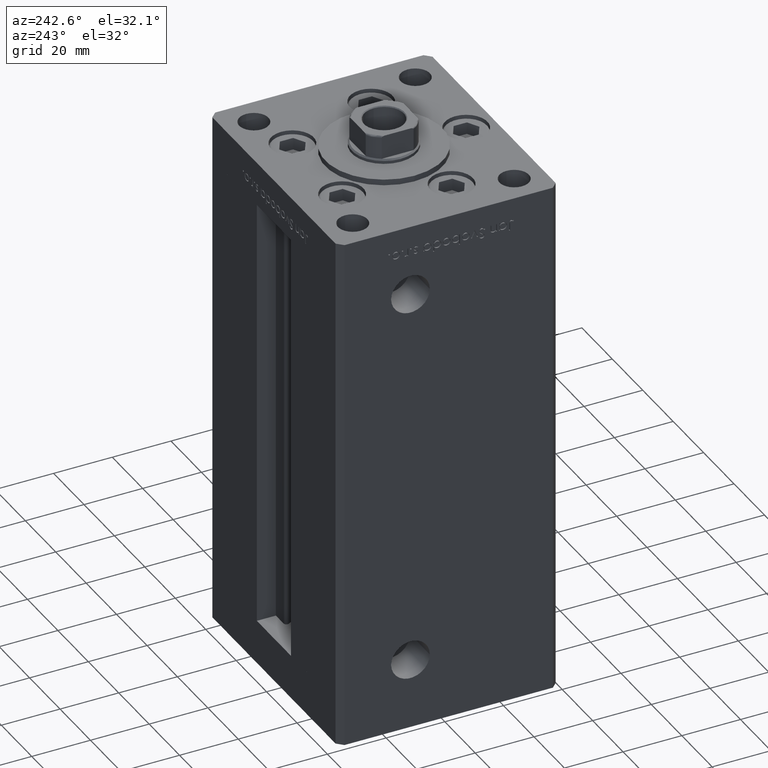
[diagram: clean part render]
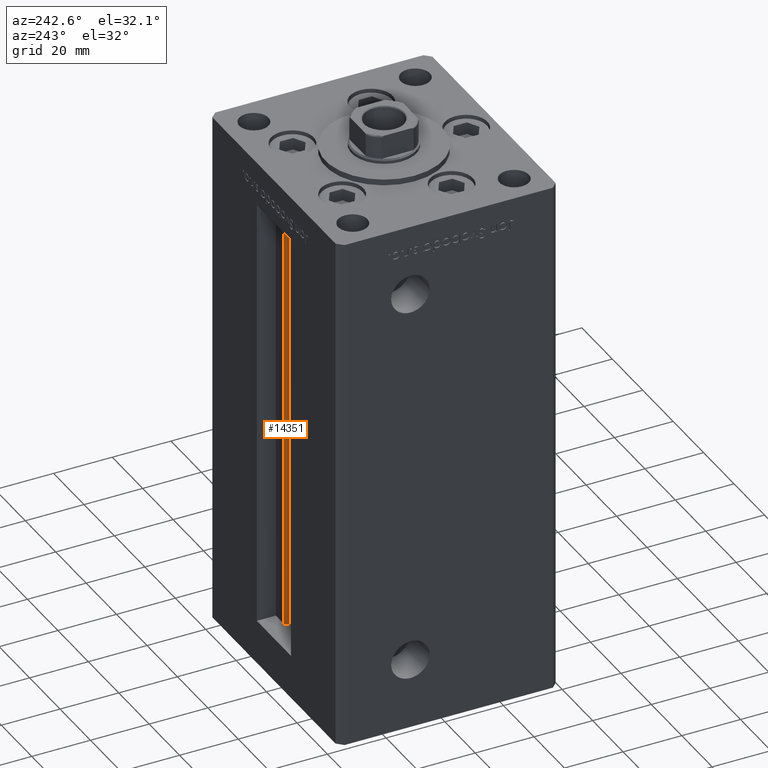
[diagram: same view with one face highlighted and labeled with its STEP entity id]
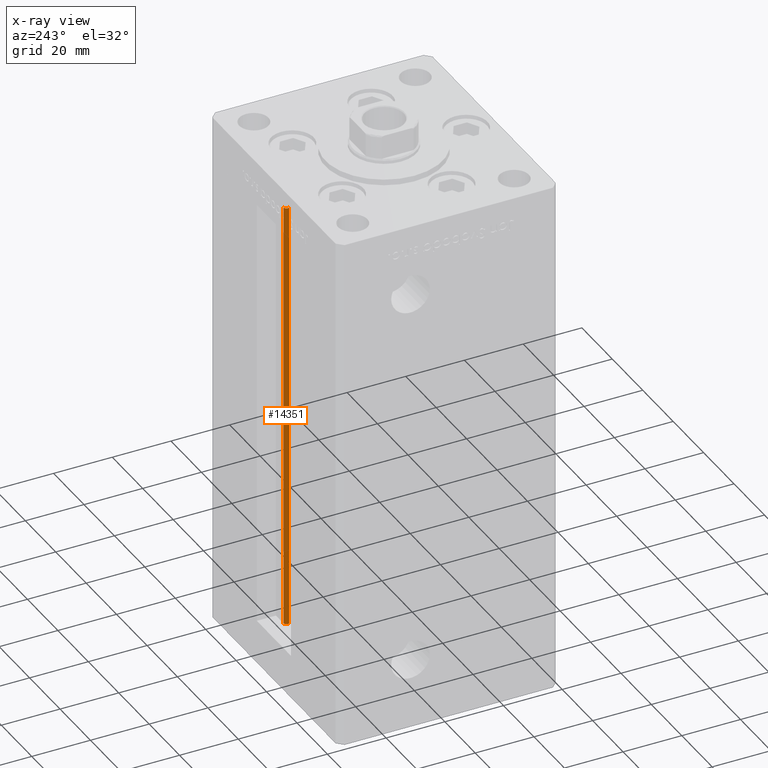
[diagram: x-ray of the same camera — body ghosted, the highlighted face saturated]
A machine part, auxiliary view. The second image highlights one B-rep face of the part: STEP entity #14351.
The next image is the same camera in x-ray: the body ghosted, the highlighted face saturated — about 0% of this face is hidden behind the body in this view.
In plain terms, the highlighted cylindrical surface (edge-blend (fillet) strip) has radius 0.9333 mm, axis along (0, 0, 1).
Its self-contained STEP definition (entity closure, byte-faithful):
#3630 = ORIENTED_EDGE ( 'NONE', *, *, #48889, .F. ) ;
#6138 = CARTESIAN_POINT ( 'NONE',  ( 6.183333333333999704, 30.06666666666599141, 0.000000000000000000 ) ) ;
#7049 = CARTESIAN_POINT ( 'NONE',  ( 5.375042956467943611, 29.59999999999899245, 0.000000000000000000 ) ) ;
#8304 = DIRECTION ( 'NONE',  ( -0.000000000000000000, -0.000000000000000000, 1.000000000000000000 ) ) ;
#8683 = CARTESIAN_POINT ( 'NONE',  ( 5.375042956467944499, 29.59999999999899245, 148.5000000000000000 ) ) ;
#8895 = VERTEX_POINT ( 'NONE', #42871 ) ;
#9565 = CARTESIAN_POINT ( 'NONE',  ( 6.183333333333999704, 30.99999999999999289, 0.000000000000000000 ) ) ;
#9574 = DIRECTION ( 'NONE',  ( 1.000000000000000000, 0.000000000000000000, 0.000000000000000000 ) ) ;
#9843 = DIRECTION ( 'NONE',  ( -0.000000000000000000, -0.000000000000000000, -1.000000000000000000 ) ) ;
#10289 = AXIS2_PLACEMENT_3D ( 'NONE', #22211, #9843, #46234 ) ;
#10356 = EDGE_CURVE ( 'NONE', #33915, #17815, #31314, .T. ) ;
#10929 = CARTESIAN_POINT ( 'NONE',  ( 6.183333333333999704, 30.99999999999999289, 148.5000000000000000 ) ) ;
#14351 = ADVANCED_FACE ( 'NONE', ( #45707 ), #22205, .T. ) ;
#16210 = LINE ( 'NONE', #37032, #49072 ) ;
#17815 = VERTEX_POINT ( 'NONE', #10929 ) ;
#18018 = EDGE_CURVE ( 'NONE', #8895, #17815, #20888, .T. ) ;
#18382 = ORIENTED_EDGE ( 'NONE', *, *, #49936, .T. ) ;
#19638 = AXIS2_PLACEMENT_3D ( 'NONE', #6138, #46761, #9574 ) ;
#20888 = LINE ( 'NONE', #9565, #40708 ) ;
#22205 = CYLINDRICAL_SURFACE ( 'NONE', #19638, 0.9333333333340015914 ) ;
#22211 = CARTESIAN_POINT ( 'NONE',  ( 6.183333333333999704, 30.06666666666599141, 0.000000000000000000 ) ) ;
#23731 = AXIS2_PLACEMENT_3D ( 'NONE', #41590, #37626, #38418 ) ;
#24436 = ORIENTED_EDGE ( 'NONE', *, *, #10356, .T. ) ;
#31314 = CIRCLE ( 'NONE', #23731, 0.9333333333340015914 ) ;
#33915 = VERTEX_POINT ( 'NONE', #8683 ) ;
#34095 = DIRECTION ( 'NONE',  ( -0.000000000000000000, -0.000000000000000000, 1.000000000000000000 ) ) ;
#37032 = CARTESIAN_POINT ( 'NONE',  ( 5.375042956467943611, 29.59999999999899245, 0.000000000000000000 ) ) ;
#37502 = EDGE_LOOP ( 'NONE', ( #39746, #3630, #18382, #24436 ) ) ;
#37626 = DIRECTION ( 'NONE',  ( 0.000000000000000000, 0.000000000000000000, -1.000000000000000000 ) ) ;
#38104 = VERTEX_POINT ( 'NONE', #7049 ) ;
#38418 = DIRECTION ( 'NONE',  ( 1.000000000000000000, 0.000000000000000000, 0.000000000000000000 ) ) ;
#39746 = ORIENTED_EDGE ( 'NONE', *, *, #18018, .F. ) ;
#40708 = VECTOR ( 'NONE', #34095, 1000.000000000000000 ) ;
#41590 = CARTESIAN_POINT ( 'NONE',  ( 6.183333333333999704, 30.06666666666599141, 148.5000000000000000 ) ) ;
#42871 = CARTESIAN_POINT ( 'NONE',  ( 6.183333333333999704, 30.99999999999999289, 0.000000000000000000 ) ) ;
#43125 = CIRCLE ( 'NONE', #10289, 0.9333333333340015914 ) ;
#45707 = FACE_OUTER_BOUND ( 'NONE', #37502, .T. ) ;
#46234 = DIRECTION ( 'NONE',  ( 1.000000000000000000, 0.000000000000000000, 0.000000000000000000 ) ) ;
#46761 = DIRECTION ( 'NONE',  ( -0.000000000000000000, -0.000000000000000000, 1.000000000000000000 ) ) ;
#48889 = EDGE_CURVE ( 'NONE', #38104, #8895, #43125, .T. ) ;
#49072 = VECTOR ( 'NONE', #8304, 1000.000000000000000 ) ;
#49936 = EDGE_CURVE ( 'NONE', #38104, #33915, #16210, .T. ) ;